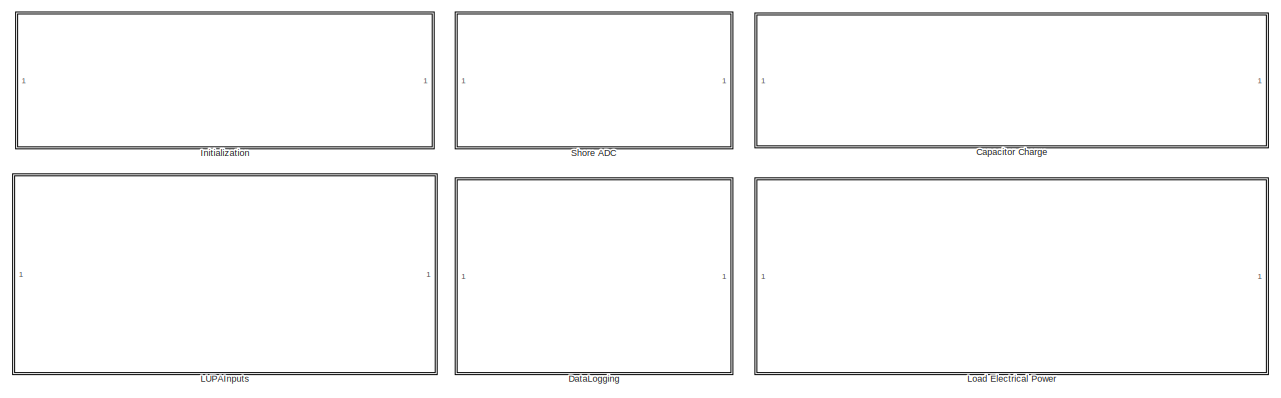
[diagram: root canvas - part 1/2, full width, top band]
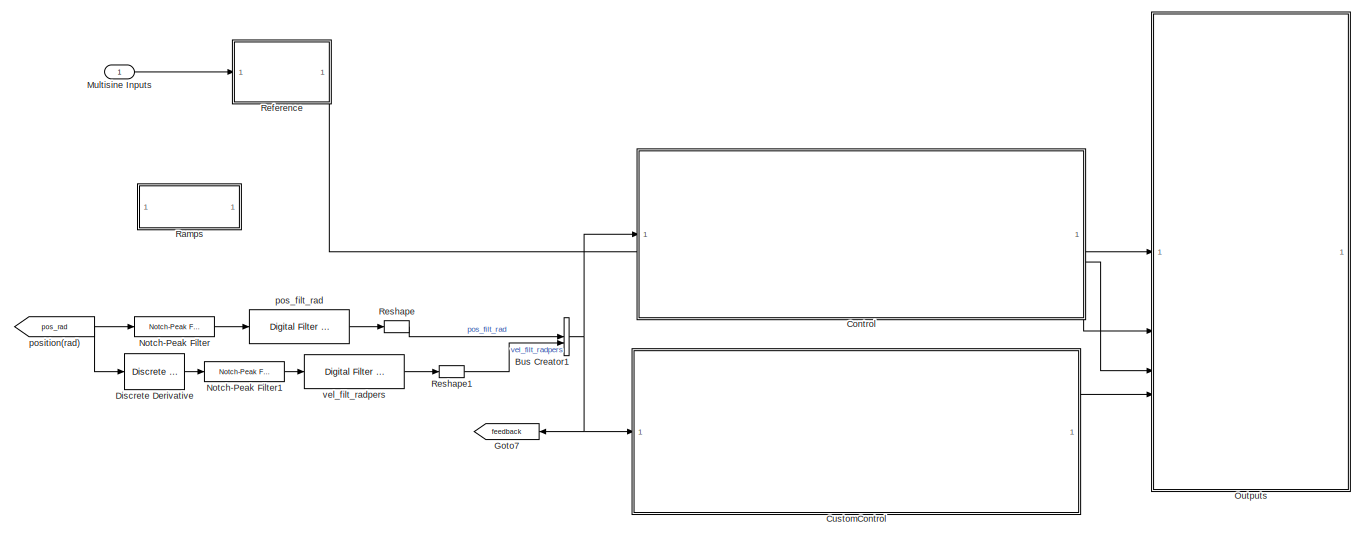
[diagram: root canvas - part 2/2, full width, bottom band]
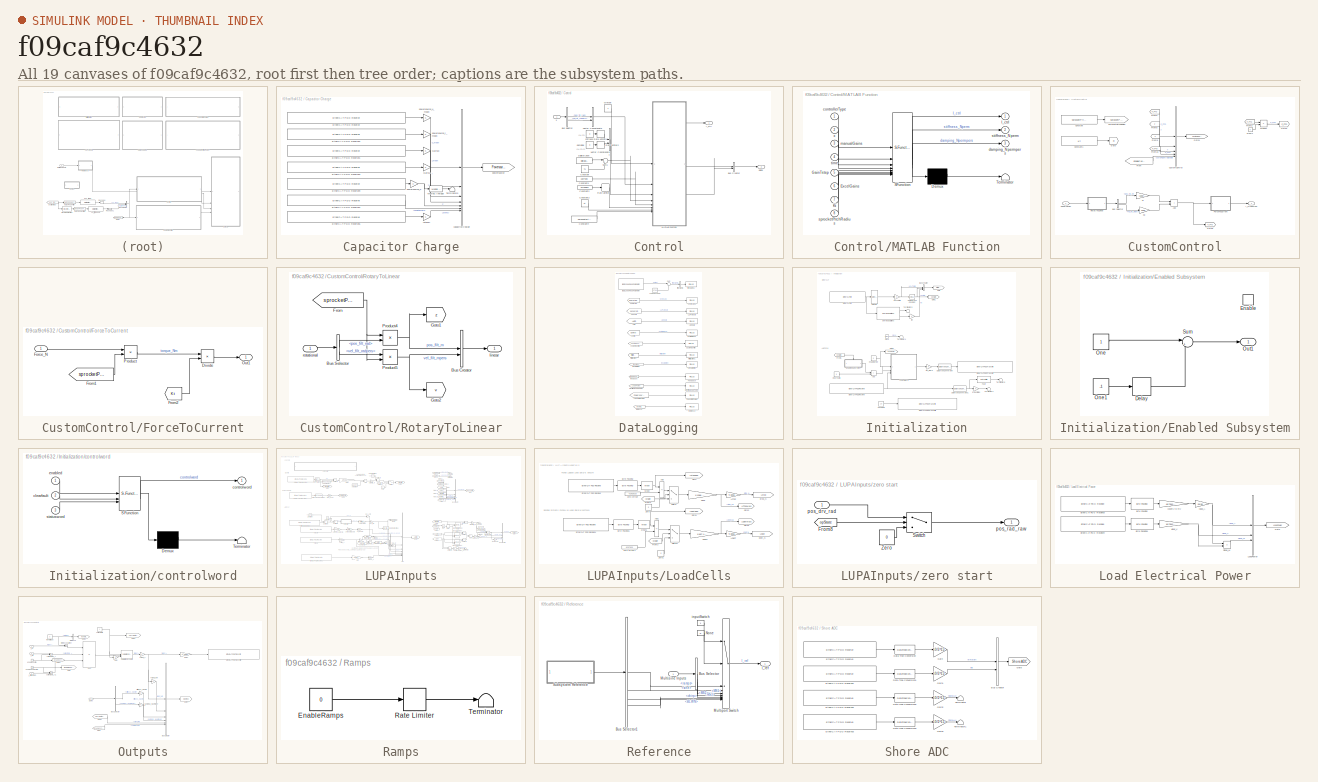
[diagram: thumbnail index - all 19 canvases of the model, root first then tree order]
MODEL slx_f09caf9c4632
KIND model
CONFIG AbsTol = auto
CONFIG EnableMultiTasking = off
CONFIG FixedStep = Ts
CONFIG MaxStep = auto
CONFIG MinStep = auto
CONFIG PreLoadFcn = addpath(genpath('utils'))\n\n
CONFIG RelTol = 1e-3
CONFIG SampleTimeConstraint = Unconstrained
CONFIG SolverName = FixedStepAuto
CONFIG StartTime = 0.0
CONFIG StopTime = inf
WORKSPACE source: mxarray member
WORKSPACE Sig: Simulink.Signal (value not decoded)
BLOCK [BusCreator] Bus Creator1
  DisplayOption = bar
  InheritFromInputs = on
  Inputs = pos_filt_rad,vel_filt_radpers
BLOCK [SubSystem] Capacitor Charge
BLOCK [Reference] Capacitor Charge/EtherCAT PDO Receive  REF=slrealtimeethercatlib/EtherCAT PDO Receive
  Priority = 2
  SourceBlock = slrealtimeethercatlib/EtherCAT PDO Receive
  SourceType = ethercat_pdo_receive
BLOCK [Reference] Capacitor Charge/EtherCAT PDO Receive1  REF=slrealtimeethercatlib/EtherCAT PDO Receive
  Priority = 2
  SourceBlock = slrealtimeethercatlib/EtherCAT PDO Receive
  SourceType = ethercat_pdo_receive
BLOCK [Reference] Capacitor Charge/EtherCAT PDO Receive2  REF=slrealtimeethercatlib/EtherCAT PDO Receive
  Priority = 2
  SourceBlock = slrealtimeethercatlib/EtherCAT PDO Receive
  SourceType = ethercat_pdo_receive
BLOCK [Reference] Capacitor Charge/EtherCAT PDO Receive3  REF=slrealtimeethercatlib/EtherCAT PDO Receive
  Priority = 2
  SourceBlock = slrealtimeethercatlib/EtherCAT PDO Receive
  SourceType = ethercat_pdo_receive
BLOCK [Reference] Capacitor Charge/EtherCAT PDO Receive4  REF=slrealtimeethercatlib/EtherCAT PDO Receive
  Priority = 2
  SourceBlock = slrealtimeethercatlib/EtherCAT PDO Receive
  SourceType = ethercat_pdo_receive
BLOCK [Reference] Capacitor Charge/EtherCAT PDO Receive5  REF=slrealtimeethercatlib/EtherCAT PDO Receive
  Priority = 2
  SourceBlock = slrealtimeethercatlib/EtherCAT PDO Receive
  SourceType = ethercat_pdo_receive
BLOCK [Reference] Capacitor Charge/EtherCAT PDO Receive9  REF=slrealtimeethercatlib/EtherCAT PDO Receive
  Priority = 2
  SourceBlock = slrealtimeethercatlib/EtherCAT PDO Receive
  SourceType = ethercat_pdo_receive
BLOCK [Gain] Capacitor Charge/Gain10
  OutDataTypeStr = double
BLOCK [Gain] Capacitor Charge/Gain11
  OutDataTypeStr = double
BLOCK [Gain] Capacitor Charge/Latency
  OutDataTypeStr = double
BLOCK [Reference] Capacitor Charge/Moving Average  REF=dspstat3/Moving
Average
  SourceBlock = dspstat3/Moving\nAverage
  SourceType = dsp.simulink.MovingAverage
BLOCK [Terminator] Capacitor Charge/Terminator5
BLOCK [BusCreator] Capacitor Charge/capacitorCharge
  DisplayOption = bar
  InheritFromInputs = on
  Inputs = 7
BLOCK [Goto] Capacitor Charge/powersource
  GotoTag = Powersource
  TagVisibility = global
BLOCK [Gain] Capacitor Charge/powersource_P
  OutDataTypeStr = double
BLOCK [Gain] Capacitor Charge/powersource_i_mean
  OutDataTypeStr = double
BLOCK [Gain] Capacitor Charge/powersource_u_mean
  OutDataTypeStr = double
BLOCK [SubSystem] Control
BLOCK [BusCreator] Control/Bus Creator
  DisplayOption = bar
  InheritFromInputs = on
  Inputs = 2
BLOCK [BusSelector] Control/Bus Selector
  OutputSignals = pos_filt_rad,vel_filt_radpers
BLOCK [Constant] Control/Constant
  Value = Ts
BLOCK [Constant] Control/Constant1
  Value = gainTstep
BLOCK [Constant] Control/Constant2
  Value = ExcelGains
  VectorParams1D = off
BLOCK [Constant] Control/Constant3
  Value = Kt
BLOCK [Constant] Control/Constant4
  Value = sprocketPitchRadius
BLOCK [DigitalClock] Control/Digital Clock
  SampleTime = Ts
BLOCK [Outport] Control/I_ctrl
BLOCK [SubSystem] Control/MATLAB Function
  ErrorFcn = Stateflow.Translate.translate
  PermitHierarchicalResolution = ExplicitOnly
  SFBlockType = MATLAB Function
  TreatAsAtomicUnit = on
BLOCK [Demux] Control/MATLAB Function/ Demux 
  Outputs = 1
BLOCK [S-Function] Control/MATLAB Function/ SFunction 
  EnableBusSupport = off
  FunctionName = sf_sfun
  PortCounts = [8 4]
  SFcnIsStateOwnerBlock = off
  SFunctionDeploymentMode = off
  Tag = Stateflow S-Function 1
BLOCK [Terminator] Control/MATLAB Function/ Terminator 
BLOCK [Inport] Control/MATLAB Function/ExcelGains
  Port = 6
BLOCK [Inport] Control/MATLAB Function/GainTstep
  Port = 5
BLOCK [Outport] Control/MATLAB Function/I_ctrl
BLOCK [Inport] Control/MATLAB Function/Kt
  Port = 7
BLOCK [Inport] Control/MATLAB Function/controllerType
BLOCK [Outport] Control/MATLAB Function/damping_Npermpers
  Port = 3
BLOCK [Inport] Control/MATLAB Function/manualGains
  Port = 3
BLOCK [Inport] Control/MATLAB Function/sprocketPitchRadius
  Port = 8
BLOCK [Outport] Control/MATLAB Function/stiffness_Nperm
  Port = 2
BLOCK [Inport] Control/MATLAB Function/time
  Port = 4
BLOCK [Inport] Control/MATLAB Function/x
  Port = 2
BLOCK [RateLimiter] Control/Rate Limiter
  FallingSlewLimit = -200
  RisingSlewLimit = 200
  SampleTimeMode = inherited
BLOCK [RateLimiter] Control/Rate Limiter1
  FallingSlewLimit = -200
  RisingSlewLimit = 200
  SampleTimeMode = inherited
BLOCK [RateLimiter] Control/Rate Limiter2
  FallingSlewLimit = -200
  RisingSlewLimit = 200
  SampleTimeMode = inherited
BLOCK [Sum] Control/Sum1
  Inputs = |++
BLOCK [Concatenate] Control/Vector Concatenate
  Mode = Multidimensional array
BLOCK [Concatenate] Control/Vector Concatenate1
  Mode = Multidimensional array
BLOCK [Constant] Control/ctrlType
BLOCK [Constant] Control/damping
  Value = 0
BLOCK [Outport] Control/gains
  Port = 2
BLOCK [Constant] Control/stiffness
  Value = 0
BLOCK [Inport] Control/x
BLOCK [SubSystem] CustomControl
BLOCK [Sum] CustomControl/Add
  IconShape = rectangular
BLOCK [BusSelector] CustomControl/Bus Selector
  OutputSignals = pos_filt_m,vel_filt_mpers
BLOCK [Constant] CustomControl/Constant
  Value = sprocketPitchRadius
BLOCK [Constant] CustomControl/Constant1
  Value = Kt
BLOCK [BusCreator] CustomControl/CustomControl
  DisplayOption = bar
  InheritFromInputs = on
  Inputs = 5
BLOCK [SubSystem] CustomControl/ForceToCurrent
  NameLocation = top
BLOCK [Product] CustomControl/ForceToCurrent/Divide
  Inputs = */
BLOCK [Inport] CustomControl/ForceToCurrent/Force_N
BLOCK [From] CustomControl/ForceToCurrent/From1
  GotoTag = sprocketPitchRadius
  TagVisibility = global
BLOCK [From] CustomControl/ForceToCurrent/From2
  GotoTag = Kt
  TagVisibility = global
BLOCK [Outport] CustomControl/ForceToCurrent/Out1
BLOCK [Product] CustomControl/ForceToCurrent/Product
BLOCK [From] CustomControl/From
  GotoTag = EnableCustControl
  TagVisibility = global
BLOCK [From] CustomControl/From10
  GotoTag = P_PTO
  TagVisibility = global
BLOCK [From] CustomControl/From3
  GotoTag = F_PTO
BLOCK [From] CustomControl/From4
  GotoTag = v
  TagVisibility = global
BLOCK [From] CustomControl/From5
  GotoTag = F_PTO
BLOCK [From] CustomControl/From8
  GotoTag = z
  TagVisibility = global
BLOCK [From] CustomControl/From9
  GotoTag = v
  TagVisibility = global
BLOCK [Goto] CustomControl/Goto
  GotoTag = Kt
  TagVisibility = global
BLOCK [Goto] CustomControl/Goto1
  GotoTag = CustomControl
  TagVisibility = global
BLOCK [Goto] CustomControl/Goto2
  GotoTag = P_PTO
  TagVisibility = global
BLOCK [Goto] CustomControl/Goto5
  GotoTag = F_PTO
BLOCK [Outport] CustomControl/I_ctrlCustom
BLOCK [Gain] CustomControl/Ki
  Gain = -1000
BLOCK [Gain] CustomControl/Kp
  Gain = 1000
BLOCK [Product] CustomControl/Product
BLOCK [SubSystem] CustomControl/RotaryToLinear
  NameLocation = top
BLOCK [BusCreator] CustomControl/RotaryToLinear/Bus Creator
  DisplayOption = bar
  InheritFromInputs = on
  Inputs = 2
BLOCK [BusSelector] CustomControl/RotaryToLinear/Bus Selector
  OutputSignals = pos_filt_rad,vel_filt_radpers
BLOCK [From] CustomControl/RotaryToLinear/From
  GotoTag = sprocketPitchRadius
  TagVisibility = global
BLOCK [Goto] CustomControl/RotaryToLinear/Goto1
  GotoTag = z
  TagVisibility = global
BLOCK [Goto] CustomControl/RotaryToLinear/Goto2
  GotoTag = v
  TagVisibility = global
BLOCK [Product] CustomControl/RotaryToLinear/Product4
BLOCK [Product] CustomControl/RotaryToLinear/Product5
BLOCK [Outport] CustomControl/RotaryToLinear/linear
  NameLocation = top
BLOCK [Inport] CustomControl/RotaryToLinear/rotational
BLOCK [Inport] CustomControl/observation
BLOCK [Goto] CustomControl/sprocketPitchRadius
  GotoTag = sprocketPitchRadius
  TagVisibility = global
BLOCK [SubSystem] DataLogging
BLOCK [From] DataLogging/AMC
  GotoTag = AMCin
  TagVisibility = global
BLOCK [Reference] DataLogging/AMCData  REF=slrealtimeloglib/File Log
  SourceBlock = slrealtimeloglib/File Log
  SourceType = slrealtimeloggingblock
BLOCK [Reference] DataLogging/CapacitorCharge  REF=slrealtimeloglib/File Log
  SourceBlock = slrealtimeloglib/File Log
  SourceType = slrealtimeloggingblock
BLOCK [Reference] DataLogging/ControlSignal  REF=slrealtimeloglib/File Log
  SourceBlock = slrealtimeloglib/File Log
  SourceType = slrealtimeloggingblock
BLOCK [Reference] DataLogging/CustomControl  REF=slrealtimeloglib/File Log
  SourceBlock = slrealtimeloglib/File Log
  SourceType = slrealtimeloggingblock
BLOCK [Reference] DataLogging/ElectricalLoadPower  REF=slrealtimeloglib/File Log
  SourceBlock = slrealtimeloglib/File Log
  SourceType = slrealtimeloggingblock
BLOCK [Reference] DataLogging/Feedback  REF=slrealtimeloglib/File Log
  SourceBlock = slrealtimeloglib/File Log
  SourceType = slrealtimeloggingblock
BLOCK [Reference] DataLogging/IEEE 1588 Read Parameter  REF=slrealtimeptplib/IEEE 1588
Read Parameter
  Priority = 1
  SourceBlock = slrealtimeptplib/IEEE 1588\nRead Parameter
  SourceType = IEEE_1588_read_param
BLOCK [Reference] DataLogging/LUPAInputs  REF=slrealtimeloglib/File Log
  SourceBlock = slrealtimeloglib/File Log
  SourceType = slrealtimeloggingblock
BLOCK [Constant] DataLogging/Leap Seconds
  OutDataTypeStr = double
  Value = 37e9
BLOCK [Reference] DataLogging/LinearMotion  REF=slrealtimeloglib/File Log
  SourceBlock = slrealtimeloglib/File Log
  SourceType = slrealtimeloggingblock
BLOCK [Reference] DataLogging/Reference  REF=slrealtimeloglib/File Log
  SourceBlock = slrealtimeloglib/File Log
  SourceType = slrealtimeloggingblock
BLOCK [Sum] DataLogging/Sum
  Inputs = |+-
BLOCK [From] DataLogging/capacitorCharge
  GotoTag = Powersource
  TagVisibility = global
BLOCK [From] DataLogging/control
  GotoTag = Control
  TagVisibility = global
BLOCK [From] DataLogging/customControl
  GotoTag = CustomControl
  TagVisibility = global
BLOCK [From] DataLogging/electricalLoadPower
  GotoTag = LoadPower
  TagVisibility = global
BLOCK [From] DataLogging/feedback
  GotoTag = feedback
  TagVisibility = global
BLOCK [From] DataLogging/initialization
  GotoTag = initialization
  TagVisibility = global
BLOCK [Reference] DataLogging/initialization1  REF=slrealtimeloglib/File Log
  SourceBlock = slrealtimeloglib/File Log
  SourceType = slrealtimeloggingblock
BLOCK [From] DataLogging/linearMotion
  GotoTag = linearMotion
  TagVisibility = global
BLOCK [From] DataLogging/reference
  GotoTag = refAmplitude
  TagVisibility = global
BLOCK [From] DataLogging/sensors
  GotoTag = sensorsin
  TagVisibility = global
BLOCK [From] DataLogging/shoreADC
  GotoTag = ShoreADC
  TagVisibility = global
BLOCK [Reference] DataLogging/shoreADC1  REF=slrealtimeloglib/File Log
  SourceBlock = slrealtimeloglib/File Log
  SourceType = slrealtimeloggingblock
BLOCK [BusCreator] DataLogging/timestamp
  DisplayOption = bar
  InheritFromInputs = on
  Inputs = timestamp
BLOCK [Reference] DataLogging/timestamp1  REF=slrealtimeloglib/File Log
  SourceBlock = slrealtimeloglib/File Log
  SourceType = slrealtimeloggingblock
BLOCK [Reference] Discrete Derivative  REF=simulink/Discrete/Discrete Derivative
  SourceBlock = simulink/Discrete/Discrete Derivative
  SourceType = Discrete Derivative
BLOCK [Goto] Goto7
  GotoTag = feedback
  NameLocation = top
  TagVisibility = global
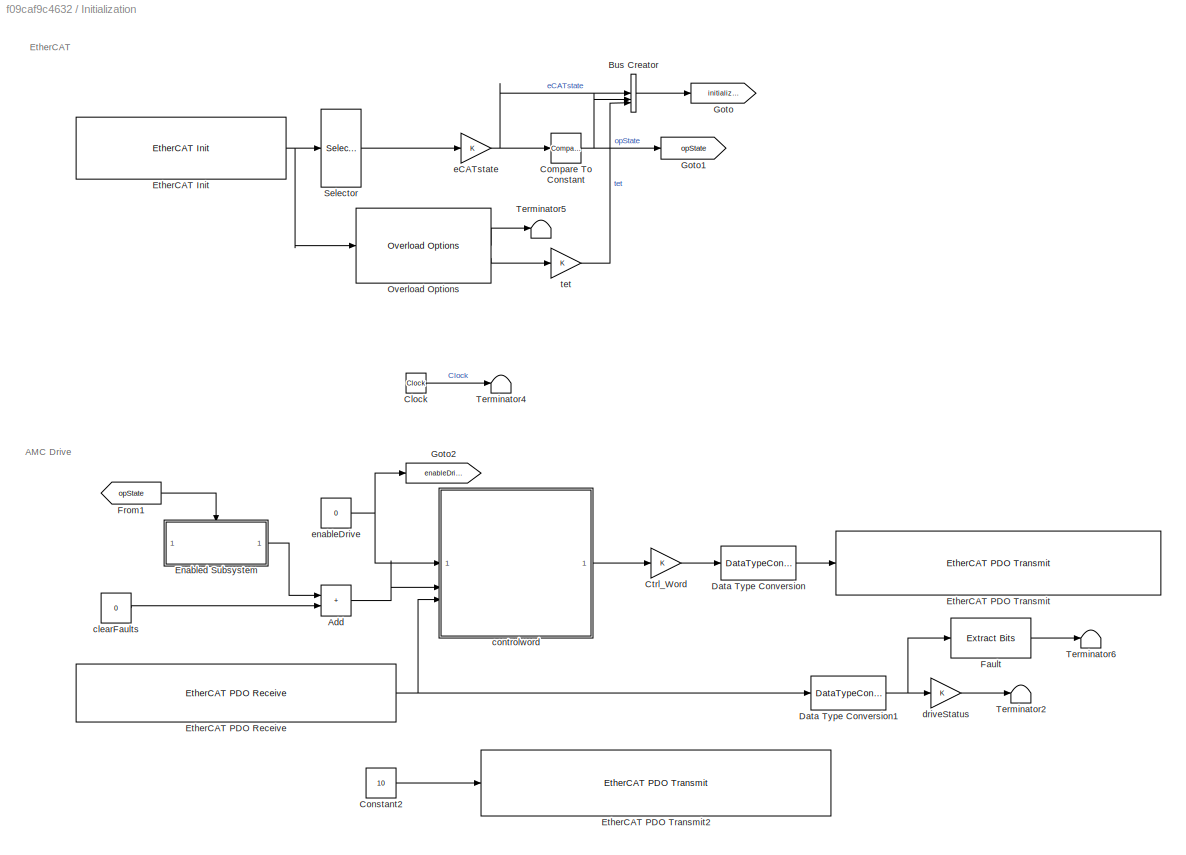
BLOCK [SubSystem] Initialization
BLOCK [Sum] Initialization/Add
  IconShape = rectangular
BLOCK [BusCreator] Initialization/Bus Creator
  DisplayOption = bar
  InheritFromInputs = on
  Inputs = eCATstate,opState,tet
BLOCK [Clock] Initialization/Clock
BLOCK [Reference] Initialization/Compare To Constant  REF=simulink/Logic and Bit
Operations/Compare
To Constant
  SourceBlock = simulink/Logic and Bit\nOperations/Compare\nTo Constant
  SourceType = Compare To Constant
BLOCK [Constant] Initialization/Constant2
  OutDataTypeStr = uint16
  Value = 10
BLOCK [Gain] Initialization/Ctrl_Word
BLOCK [DataTypeConversion] Initialization/Data Type Conversion
  OutDataTypeStr = uint16
  RndMeth = Floor
  SaturateOnIntegerOverflow = off
BLOCK [DataTypeConversion] Initialization/Data Type Conversion1
  OutDataTypeStr = double
  RndMeth = Floor
  SaturateOnIntegerOverflow = off
BLOCK [SubSystem] Initialization/Enabled Subsystem
  TreatAsAtomicUnit = on
BLOCK [Delay] Initialization/Enabled Subsystem/Delay
  DelayLength = 1/Ts
  InputPortMap = u0
BLOCK [EnablePort] Initialization/Enabled Subsystem/Enable
BLOCK [Constant] Initialization/Enabled Subsystem/One
  OutDataTypeStr = Inherit: Inherit via back propagation
BLOCK [Constant] Initialization/Enabled Subsystem/One1
  OutDataTypeStr = Inherit: Inherit via back propagation
  Value = -1
BLOCK [Outport] Initialization/Enabled Subsystem/Out1
BLOCK [Sum] Initialization/Enabled Subsystem/Sum
  Inputs = |++
BLOCK [Reference] Initialization/EtherCAT Init  REF=slrealtimeethercatlib/EtherCAT Init
  Priority = 0
  SourceBlock = slrealtimeethercatlib/EtherCAT Init
  SourceType = ethercatinit
BLOCK [Reference] Initialization/EtherCAT PDO Receive  REF=slrealtimeethercatlib/EtherCAT PDO Receive
  Priority = 2
  SourceBlock = slrealtimeethercatlib/EtherCAT PDO Receive
  SourceType = ethercat_pdo_receive
BLOCK [Reference] Initialization/EtherCAT PDO Transmit  REF=slrealtimeethercatlib/EtherCAT PDO Transmit
  Priority = 3
  SourceBlock = slrealtimeethercatlib/EtherCAT PDO Transmit
  SourceType = ethercat_pdo_send
BLOCK [Reference] Initialization/EtherCAT PDO Transmit2  REF=slrealtimeethercatlib/EtherCAT PDO Transmit
  Priority = 3
  SourceBlock = slrealtimeethercatlib/EtherCAT PDO Transmit
  SourceType = ethercat_pdo_send
BLOCK [Reference] Initialization/Fault  REF=simulink/Logic and Bit
Operations/Extract Bits
  SourceBlock = simulink/Logic and Bit\nOperations/Extract Bits
  SourceType = Extract Bits
BLOCK [From] Initialization/From1
  GotoTag = opState
  TagVisibility = global
BLOCK [Goto] Initialization/Goto
  GotoTag = initialization
  TagVisibility = global
BLOCK [Goto] Initialization/Goto1
  GotoTag = opState
  TagVisibility = global
BLOCK [Goto] Initialization/Goto2
  GotoTag = enableDrive
  TagVisibility = global
BLOCK [Reference] Initialization/Overload Options  REF=slrealtimetgmanagement/Overload Options
  SourceBlock = slrealtimetgmanagement/Overload Options
  SourceType = slrtOverloadOptions
BLOCK [Selector] Initialization/Selector
  IndexOptions = Index vector (dialog)
  Indices = 2
  InputPortWidth = 6
  OutputSizes = 1
BLOCK [Terminator] Initialization/Terminator2
BLOCK [Terminator] Initialization/Terminator4
BLOCK [Terminator] Initialization/Terminator5
BLOCK [Terminator] Initialization/Terminator6
BLOCK [Constant] Initialization/clearFaults
  Value = 0
BLOCK [SubSystem] Initialization/controlword
  ErrorFcn = Stateflow.Translate.translate
  PermitHierarchicalResolution = ExplicitOnly
  SFBlockType = MATLAB Function
  TreatAsAtomicUnit = on
BLOCK [Demux] Initialization/controlword/ Demux 
  Outputs = 1
BLOCK [S-Function] Initialization/controlword/ SFunction 
  EnableBusSupport = off
  FunctionName = sf_sfun
  PortCounts = [3 2]
  SFcnIsStateOwnerBlock = off
  SFunctionDeploymentMode = off
  Tag = Stateflow S-Function 2
BLOCK [Terminator] Initialization/controlword/ Terminator 
BLOCK [Inport] Initialization/controlword/clearfault
  Port = 2
BLOCK [Outport] Initialization/controlword/controlword
BLOCK [Inport] Initialization/controlword/enabled
BLOCK [Inport] Initialization/controlword/statusword
  Port = 3
BLOCK [Gain] Initialization/driveStatus
BLOCK [Gain] Initialization/eCATstate
  OutDataTypeStr = double
BLOCK [Constant] Initialization/enableDrive
  Value = 0
BLOCK [Gain] Initialization/tet
  OutDataTypeStr = double
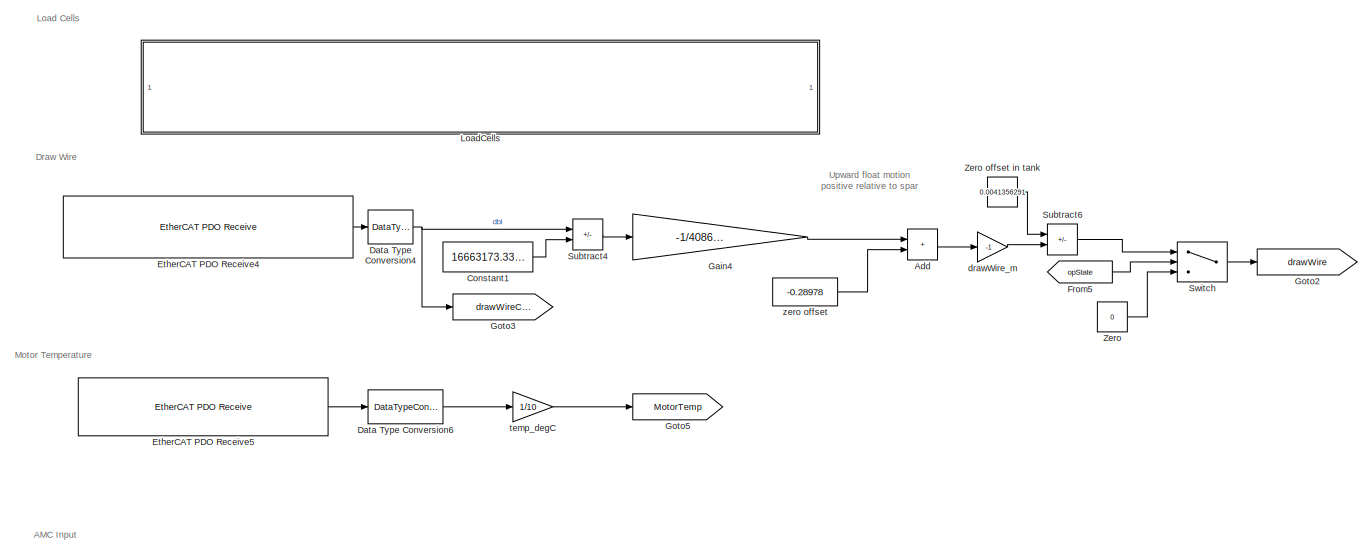
[diagram: LUPAInputs - part 1/3, top left region]
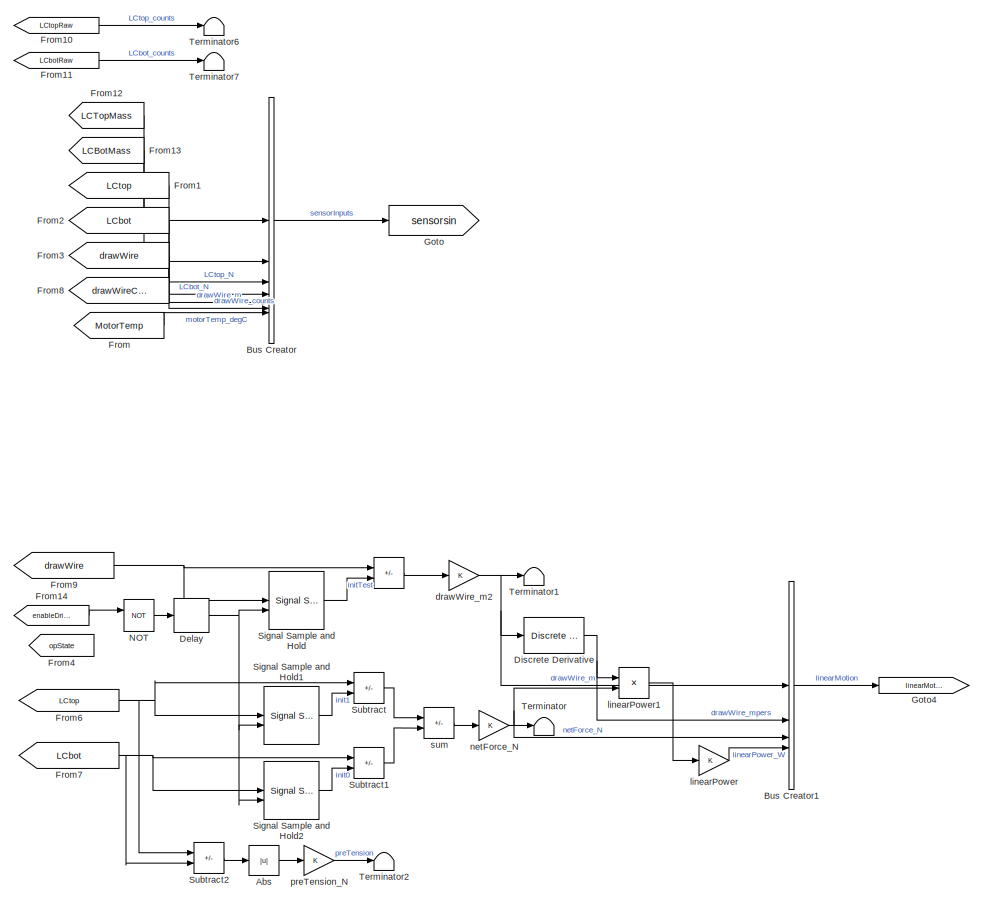
[diagram: LUPAInputs - part 2/3, right side, full height]
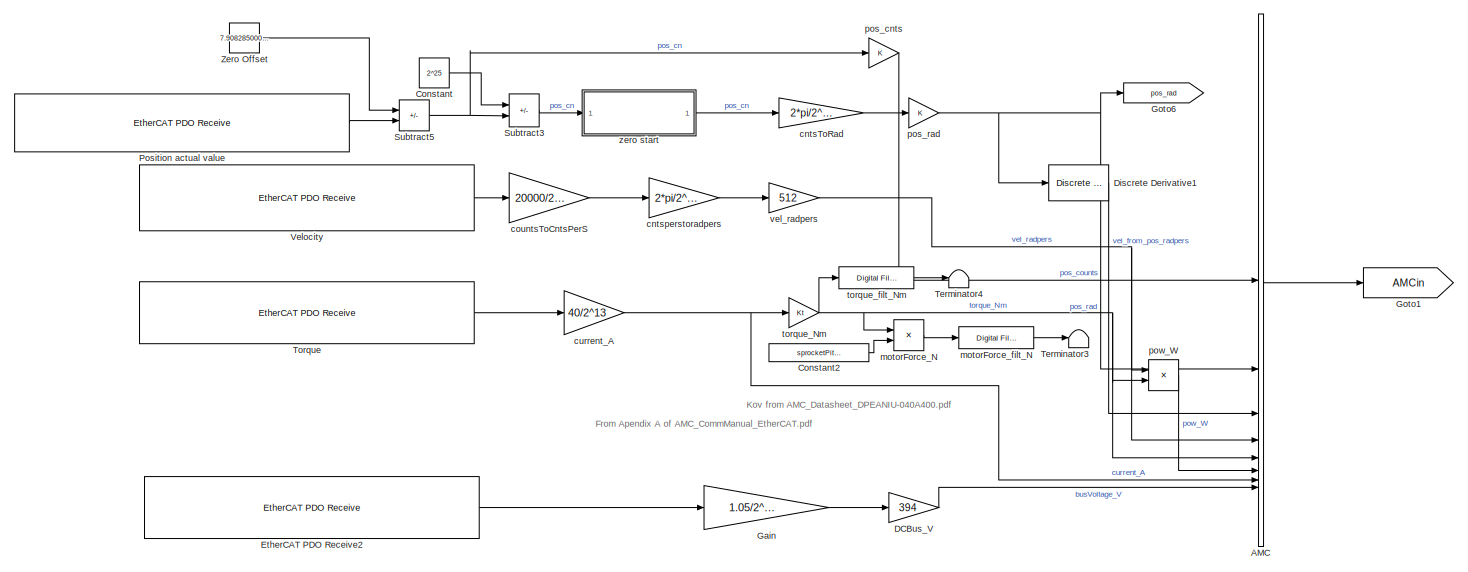
[diagram: LUPAInputs - part 3/3, bottom left region]
BLOCK [SubSystem] LUPAInputs
BLOCK [Sum] LUPAInputs/ 
  IconShape = rectangular
  Inputs = +-
BLOCK [BusCreator] LUPAInputs/AMC
  DisplayOption = bar
  InheritFromInputs = on
  Inputs = 8
BLOCK [Abs] LUPAInputs/Abs
  SaturateOnIntegerOverflow = off
BLOCK [Sum] LUPAInputs/Add
  IconShape = rectangular
BLOCK [BusCreator] LUPAInputs/Bus Creator
  DisplayOption = bar
  InheritFromInputs = on
  Inputs = 7
BLOCK [BusCreator] LUPAInputs/Bus Creator1
  DisplayOption = bar
  InheritFromInputs = on
  Inputs = drawWire_m,drawWire_mpers,netForce_N,linearPower_W
BLOCK [Constant] LUPAInputs/Constant
  Value = 2^25
BLOCK [Constant] LUPAInputs/Constant1
  Value = 16663173.3333
BLOCK [Constant] LUPAInputs/Constant2
  Value = sprocketPitchRadius
BLOCK [Gain] LUPAInputs/DCBus_V
  Gain = 394
BLOCK [DataTypeConversion] LUPAInputs/Data Type Conversion4
  OutDataTypeStr = double
  RndMeth = Floor
  SaturateOnIntegerOverflow = off
BLOCK [DataTypeConversion] LUPAInputs/Data Type Conversion6
  OutDataTypeStr = double
  RndMeth = Floor
  SaturateOnIntegerOverflow = off
BLOCK [Delay] LUPAInputs/Delay
  DelayLength = 1000
  InputPortMap = u0
BLOCK [Reference] LUPAInputs/Discrete Derivative  REF=simulink/Discrete/Discrete Derivative
  SourceBlock = simulink/Discrete/Discrete Derivative
  SourceType = Discrete Derivative
BLOCK [Reference] LUPAInputs/Discrete Derivative1  REF=simulink/Discrete/Discrete Derivative
  SourceBlock = simulink/Discrete/Discrete Derivative
  SourceType = Discrete Derivative
BLOCK [Reference] LUPAInputs/EtherCAT PDO Receive2  REF=slrealtimeethercatlib/EtherCAT PDO Receive
  Priority = 2
  SourceBlock = slrealtimeethercatlib/EtherCAT PDO Receive
  SourceType = ethercat_pdo_receive
BLOCK [Reference] LUPAInputs/EtherCAT PDO Receive4  REF=slrealtimeethercatlib/EtherCAT PDO Receive
  Priority = 2
  SourceBlock = slrealtimeethercatlib/EtherCAT PDO Receive
  SourceType = ethercat_pdo_receive
BLOCK [Reference] LUPAInputs/EtherCAT PDO Receive5  REF=slrealtimeethercatlib/EtherCAT PDO Receive
  Priority = 2
  SourceBlock = slrealtimeethercatlib/EtherCAT PDO Receive
  SourceType = ethercat_pdo_receive
BLOCK [From] LUPAInputs/From
  GotoTag = MotorTemp
  TagVisibility = global
BLOCK [From] LUPAInputs/From1
  GotoTag = LCtop
  TagVisibility = global
BLOCK [From] LUPAInputs/From10
  GotoTag = LCtopRaw
  TagVisibility = global
BLOCK [From] LUPAInputs/From11
  GotoTag = LCbotRaw
  TagVisibility = global
BLOCK [From] LUPAInputs/From12
  GotoTag = LCTopMass
  TagVisibility = global
BLOCK [From] LUPAInputs/From13
  GotoTag = LCBotMass
  TagVisibility = global
BLOCK [From] LUPAInputs/From14
  GotoTag = enableDrive
  TagVisibility = global
BLOCK [From] LUPAInputs/From2
  GotoTag = LCbot
  TagVisibility = global
BLOCK [From] LUPAInputs/From3
  GotoTag = drawWire
BLOCK [From] LUPAInputs/From4
  Commented = on
  GotoTag = opState
  TagVisibility = global
BLOCK [From] LUPAInputs/From5
  GotoTag = opState
  TagVisibility = global
BLOCK [From] LUPAInputs/From6
  GotoTag = LCtop
  TagVisibility = global
BLOCK [From] LUPAInputs/From7
  GotoTag = LCbot
  TagVisibility = global
BLOCK [From] LUPAInputs/From8
  GotoTag = drawWireCounts
BLOCK [From] LUPAInputs/From9
  GotoTag = drawWire
BLOCK [Gain] LUPAInputs/Gain
  Gain = 1.05/2^14
  OutDataTypeStr = double
BLOCK [Gain] LUPAInputs/Gain4
  Gain = -1/40866.6667
BLOCK [Goto] LUPAInputs/Goto
  GotoTag = sensorsin
  TagVisibility = global
BLOCK [Goto] LUPAInputs/Goto1
  GotoTag = AMCin
  TagVisibility = global
BLOCK [Goto] LUPAInputs/Goto2
  GotoTag = drawWire
BLOCK [Goto] LUPAInputs/Goto3
  GotoTag = drawWireCounts
BLOCK [Goto] LUPAInputs/Goto4
  GotoTag = linearMotion
  TagVisibility = global
BLOCK [Goto] LUPAInputs/Goto5
  GotoTag = MotorTemp
  TagVisibility = global
BLOCK [Goto] LUPAInputs/Goto6
  GotoTag = pos_rad
  TagVisibility = global
BLOCK [SubSystem] LUPAInputs/LoadCells
BLOCK [Sum] LUPAInputs/LoadCells/Add
  IconShape = rectangular
  Inputs = +-
BLOCK [Sum] LUPAInputs/LoadCells/Add1
  IconShape = rectangular
  Inputs = +-
BLOCK [Reference] LUPAInputs/LoadCells/Byte Packing  REF=slrealtimeutilitieslib/Byte Packing
  SourceBlock = slrealtimeutilitieslib/Byte Packing
  SourceType = slrealtimebytepacking
BLOCK [Reference] LUPAInputs/LoadCells/Byte Packing1  REF=slrealtimeutilitieslib/Byte Packing
  SourceBlock = slrealtimeutilitieslib/Byte Packing
  SourceType = slrealtimebytepacking
BLOCK [Reference] LUPAInputs/LoadCells/EtherCAT PDO Receive  REF=slrealtimeethercatlib/EtherCAT PDO Receive
  Priority = 2
  SourceBlock = slrealtimeethercatlib/EtherCAT PDO Receive
  SourceType = ethercat_pdo_receive
BLOCK [Reference] LUPAInputs/LoadCells/EtherCAT PDO Receive1  REF=slrealtimeethercatlib/EtherCAT PDO Receive
  Priority = 2
  SourceBlock = slrealtimeethercatlib/EtherCAT PDO Receive
  SourceType = ethercat_pdo_receive
BLOCK [From] LUPAInputs/LoadCells/From2
  GotoTag = opState
  TagVisibility = global
BLOCK [From] LUPAInputs/LoadCells/From3
  GotoTag = opState
  TagVisibility = global
BLOCK [Goto] LUPAInputs/LoadCells/Goto
  GotoTag = LCtopRaw
  TagVisibility = global
BLOCK [Goto] LUPAInputs/LoadCells/Goto1
  GotoTag = LCbotRaw
  TagVisibility = global
BLOCK [Goto] LUPAInputs/LoadCells/Goto2
  GotoTag = LCTopMass
  TagVisibility = global
BLOCK [Goto] LUPAInputs/LoadCells/Goto3
  GotoTag = LCBotMass
  TagVisibility = global
BLOCK [Gain] LUPAInputs/LoadCells/LCBOT
  Gain = 9.8056
BLOCK [Gain] LUPAInputs/LoadCells/LCTOP
  Gain = 9.8056
BLOCK [Reference] LUPAInputs/LoadCells/Mean  REF=dspstat3/Mean
  SourceBlock = dspstat3/Mean
  SourceType = Mean
  UserDataPersistent = on
BLOCK [Reference] LUPAInputs/LoadCells/Mean1  REF=dspstat3/Mean
  SourceBlock = dspstat3/Mean
  SourceType = Mean
  UserDataPersistent = on
BLOCK [Switch] LUPAInputs/LoadCells/Switch
  Criteria = u2 > Threshold
  InputSameDT = off
  SaturateOnIntegerOverflow = off
BLOCK [Switch] LUPAInputs/LoadCells/Switch1
  Criteria = u2 > Threshold
  InputSameDT = off
  SaturateOnIntegerOverflow = off
BLOCK [Constant] LUPAInputs/LoadCells/Zero
  OutDataTypeStr = Inherit: Inherit via back propagation
  Value = 0
BLOCK [Constant] LUPAInputs/LoadCells/Zero1
  OutDataTypeStr = Inherit: Inherit via back propagation
  Value = 0
BLOCK [Goto] LUPAInputs/LoadCells/lcbot_N
  GotoTag = LCbot
  TagVisibility = global
BLOCK [Goto] LUPAInputs/LoadCells/lctop_N
  GotoTag = LCtop
  TagVisibility = global
BLOCK [Gain] LUPAInputs/LoadCells/slope
  Gain = 1/1088.2909
BLOCK [Gain] LUPAInputs/LoadCells/slope1
  Gain = 1/857.4045
BLOCK [Constant] LUPAInputs/LoadCells/zero offset
  Value = 4295.9625
BLOCK [Constant] LUPAInputs/LoadCells/zero offset1
  Value = -6297.936
BLOCK [Logic] LUPAInputs/NOT
  AllPortsSameDT = off
  IconShape = distinctive
  Operator = NOT
  OutDataTypeStr = boolean
BLOCK [Reference] LUPAInputs/Position actual value  REF=slrealtimeethercatlib/EtherCAT PDO Receive
  Priority = 2
  SourceBlock = slrealtimeethercatlib/EtherCAT PDO Receive
  SourceType = ethercat_pdo_receive
BLOCK [Reference] LUPAInputs/Signal Sample and Hold  REF=eeGeneralControl/Signal Sample and Hold
  LibrarySourceBlock = ee_sl_lib/General Control/Signal Sample and Hold
  SourceBlock = eeGeneralControl/Signal Sample and Hold
  SourceType = Signal Sample-and-Hold
BLOCK [Reference] LUPAInputs/Signal Sample and Hold1  REF=eeGeneralControl/Signal Sample and Hold
  LibrarySourceBlock = ee_sl_lib/General Control/Signal Sample and Hold
  SourceBlock = eeGeneralControl/Signal Sample and Hold
  SourceType = Signal Sample-and-Hold
BLOCK [Reference] LUPAInputs/Signal Sample and Hold2  REF=eeGeneralControl/Signal Sample and Hold
  LibrarySourceBlock = ee_sl_lib/General Control/Signal Sample and Hold
  SourceBlock = eeGeneralControl/Signal Sample and Hold
  SourceType = Signal Sample-and-Hold
BLOCK [Sum] LUPAInputs/Subtract
  IconShape = rectangular
  Inputs = +-
BLOCK [Sum] LUPAInputs/Subtract1
  IconShape = rectangular
  Inputs = +-
BLOCK [Sum] LUPAInputs/Subtract2
  IconShape = rectangular
  Inputs = +-
BLOCK [Sum] LUPAInputs/Subtract3
  IconShape = rectangular
  Inputs = -+
BLOCK [Sum] LUPAInputs/Subtract4
  IconShape = rectangular
  Inputs = +-
BLOCK [Sum] LUPAInputs/Subtract5
  IconShape = rectangular
  Inputs = -+
  OutDataTypeStr = double
BLOCK [Sum] LUPAInputs/Subtract6
  IconShape = rectangular
  Inputs = -+
BLOCK [Switch] LUPAInputs/Switch
  Criteria = u2 > Threshold
  InputSameDT = off
  SaturateOnIntegerOverflow = off
BLOCK [Terminator] LUPAInputs/Terminator
BLOCK [Terminator] LUPAInputs/Terminator1
BLOCK [Terminator] LUPAInputs/Terminator2
BLOCK [Terminator] LUPAInputs/Terminator3
BLOCK [Terminator] LUPAInputs/Terminator4
BLOCK [Terminator] LUPAInputs/Terminator6
BLOCK [Terminator] LUPAInputs/Terminator7
BLOCK [Reference] LUPAInputs/Torque  REF=slrealtimeethercatlib/EtherCAT PDO Receive
  Priority = 2
  SourceBlock = slrealtimeethercatlib/EtherCAT PDO Receive
  SourceType = ethercat_pdo_receive
BLOCK [Reference] LUPAInputs/Velocity  REF=slrealtimeethercatlib/EtherCAT PDO Receive
  Priority = 2
  SourceBlock = slrealtimeethercatlib/EtherCAT PDO Receive
  SourceType = ethercat_pdo_receive
BLOCK [Constant] LUPAInputs/Zero
  OutDataTypeStr = double
  Value = 0
BLOCK [Constant] LUPAInputs/Zero Offset
  Value = 7.908285000000000e+05
BLOCK [Constant] LUPAInputs/Zero offset in tank
  Value = 0.0041356291
BLOCK [Gain] LUPAInputs/cntsToRad
  Gain = 2*pi/2^26
  OutDataTypeStr = double
BLOCK [Gain] LUPAInputs/cntsperstoradpers
  Gain = 2*pi/2^26
BLOCK [Gain] LUPAInputs/countsToCntsPerS
  Gain = 20000/2^17
  OutDataTypeStr = double
BLOCK [Gain] LUPAInputs/current_A
  Gain = 40/2^13
  OutDataTypeStr = double
BLOCK [Gain] LUPAInputs/drawWire_m
  Gain = -1
BLOCK [Gain] LUPAInputs/drawWire_m2
BLOCK [Gain] LUPAInputs/linearPower
BLOCK [Product] LUPAInputs/linearPower1
BLOCK [Product] LUPAInputs/motorForce_N
  Inputs = */
BLOCK [Reference] LUPAInputs/motorForce_filt_N  REF=dspfdesign/Digital
Filter Design
  SourceBlock = dspfdesign/Digital\nFilter Design
  SourceType = Digital Filter Design
  UserDataPersistent = on
BLOCK [Gain] LUPAInputs/netForce_N
BLOCK [Gain] LUPAInputs/pos_cnts
BLOCK [Gain] LUPAInputs/pos_rad
BLOCK [Product] LUPAInputs/pow_W
BLOCK [Gain] LUPAInputs/preTension_N
BLOCK [Sum] LUPAInputs/sum
  IconShape = rectangular
  Inputs = +-
BLOCK [Gain] LUPAInputs/temp_degC
  Gain = 1/10
BLOCK [Gain] LUPAInputs/torque_Nm
  Gain = Kt
BLOCK [Reference] LUPAInputs/torque_filt_Nm  REF=dspfdesign/Digital
Filter Design
  SourceBlock = dspfdesign/Digital\nFilter Design
  SourceType = Digital Filter Design
  UserDataPersistent = on
BLOCK [Gain] LUPAInputs/vel_radpers
  Gain = 512
BLOCK [Constant] LUPAInputs/zero offset
  Value = -0.28978
BLOCK [SubSystem] LUPAInputs/zero start
BLOCK [From] LUPAInputs/zero start/From8
  GotoTag = opState
  TagVisibility = global
BLOCK [Switch] LUPAInputs/zero start/Switch
  Criteria = u2 > Threshold
  InputSameDT = off
  SaturateOnIntegerOverflow = off
BLOCK [Constant] LUPAInputs/zero start/Zero
  OutDataTypeStr = double
  Value = 0
BLOCK [Inport] LUPAInputs/zero start/pos_drv_rad
BLOCK [Outport] LUPAInputs/zero start/pos_rad_raw
BLOCK [SubSystem] Load Electrical Power
BLOCK [Reference] Load Electrical Power/Byte Packing  REF=slrealtimeutilitieslib/Byte Packing
  SourceBlock = slrealtimeutilitieslib/Byte Packing
  SourceType = slrealtimebytepacking
BLOCK [Reference] Load Electrical Power/Byte Packing1  REF=slrealtimeutilitieslib/Byte Packing
  SourceBlock = slrealtimeutilitieslib/Byte Packing
  SourceType = slrealtimebytepacking
BLOCK [Reference] Load Electrical Power/EtherCAT PDO Receive3  REF=slrealtimeethercatlib/EtherCAT PDO Receive
  Priority = 2
  SourceBlock = slrealtimeethercatlib/EtherCAT PDO Receive
  SourceType = ethercat_pdo_receive
BLOCK [Reference] Load Electrical Power/EtherCAT PDO Receive4  REF=slrealtimeethercatlib/EtherCAT PDO Receive
  Priority = 2
  SourceBlock = slrealtimeethercatlib/EtherCAT PDO Receive
  SourceType = ethercat_pdo_receive
BLOCK [Goto] Load Electrical Power/Goto
  GotoTag = LoadPower
  TagVisibility = global
BLOCK [Gain] Load Electrical Power/Iload_A
  Gain = 20/50
BLOCK [BusCreator] Load Electrical Power/LoadPower
  DisplayOption = bar
  InheritFromInputs = on
  Inputs = 3
BLOCK [Product] Load Electrical Power/Pload_W
BLOCK [Gain] Load Electrical Power/Vload_V
  Gain = 10/7812500
  OutDataTypeStr = double
BLOCK [Gain] Load Electrical Power/counts to mV
  Gain = 40/7812500
  OutDataTypeStr = double
BLOCK [Inport] Multisine Inputs
  OutDataTypeStr = Bus: refSigs
BLOCK [Reference] Notch-Peak Filter  REF=dspfdesign/Notch-Peak Filter
  SourceBlock = dspfdesign/Notch-Peak Filter
  SourceType = dsp.simulink.NotchPeakFilter
BLOCK [Reference] Notch-Peak Filter1  REF=dspfdesign/Notch-Peak Filter
  SourceBlock = dspfdesign/Notch-Peak Filter
  SourceType = dsp.simulink.NotchPeakFilter
BLOCK [SubSystem] Outputs
BLOCK [BusCreator] Outputs/Bus Creator
  DisplayOption = bar
  InheritFromInputs = on
  Inputs = 6
BLOCK [BusSelector] Outputs/Bus Selector
  OutputSignals = stiffness_Nperm,damping_Npermpers
BLOCK [Reference] Outputs/EtherCAT PDO Transmit1  REF=slrealtimeethercatlib/EtherCAT PDO Transmit
  Priority = 3
  SourceBlock = slrealtimeethercatlib/EtherCAT PDO Transmit
  SourceType = ethercat_pdo_send
BLOCK [From] Outputs/From
  GotoTag = EnableControl
BLOCK [From] Outputs/From1
  GotoTag = currentLimit
BLOCK [Gain] Outputs/Gain
  Gain = -1
BLOCK [Gain] Outputs/Gain1
  Gain = 2^15/40
  OutDataTypeStr = int16
BLOCK [Goto] Outputs/Goto
  GotoTag = EnableCustControl
  TagVisibility = global
BLOCK [Goto] Outputs/Goto1
  GotoTag = currentLimit
BLOCK [Goto] Outputs/Goto2
  GotoTag = refAmplitude
  TagVisibility = global
BLOCK [Goto] Outputs/Goto3
  GotoTag = EnableControl
BLOCK [Goto] Outputs/Goto4
  GotoTag = Control
  TagVisibility = global
BLOCK [Inport] Outputs/I_ctrl
  Port = 2
BLOCK [Inport] Outputs/I_ctrlCustom
  Port = 4
BLOCK [Inport] Outputs/I_ref
BLOCK [Reference] Outputs/Saturation Dynamic  REF=simulink/Discontinuities/Saturation
Dynamic
  SourceBlock = simulink/Discontinuities/Saturation\nDynamic
  SourceType = Saturation Dynamic
BLOCK [Sum] Outputs/Sum
  IconShape = rectangular
  Inputs = +--
BLOCK [Gain] Outputs/Target_A
BLOCK [Gain] Outputs/Target_Nm
  Gain = Kt
BLOCK [Product] Outputs/currentCmd_A
BLOCK [Product] Outputs/currentCmd_A1
BLOCK [Constant] Outputs/currentLimit
BLOCK [Gain] Outputs/damping_Npermpers
BLOCK [Constant] Outputs/enableControl
  Value = 0
BLOCK [Constant] Outputs/enableCustControl
  Value = 0
BLOCK [Inport] Outputs/gains
  Port = 3
BLOCK [Constant] Outputs/refAmplitude
  Value = 0
BLOCK [BusCreator] Outputs/reference
  DisplayOption = bar
  InheritFromInputs = on
  Inputs = 1
BLOCK [Product] Outputs/referenceCurrent
BLOCK [Gain] Outputs/stiffness_Nperm
BLOCK [SubSystem] Ramps
BLOCK [Constant] Ramps/EnableRamps
  OutDataTypeStr = double
  Value = 0
BLOCK [RateLimiter] Ramps/Rate Limiter
  FallingSlewLimit = -1/rampTime
  RisingSlewLimit = 1/rampTime
  SampleTimeMode = inherited
BLOCK [Terminator] Ramps/Terminator
BLOCK [SubSystem] Reference
BLOCK [BusSelector] Reference/Bus Selector
  OutputSignals = MS1,MS2,MS3
BLOCK [BusSelector] Reference/Bus Selector1
  OutputSignals = ramps,sine,chirp,BLWN
BLOCK [Outport] Reference/I_ref
BLOCK [MultiPortSwitch] Reference/Multiport Switch
  InputSameDT = off
  Inputs = 8
  SaturateOnIntegerOverflow = off
BLOCK [Inport] Reference/Multisine Inputs
BLOCK [Constant] Reference/None
  Value = 0
BLOCK [SubSystem] Reference/Subsystem Reference
  ReferencedSubsystem = referenceSigs
BLOCK [Constant] Reference/inputSwitch
BLOCK [Reshape] Reshape
BLOCK [Reshape] Reshape1
BLOCK [SubSystem] Shore ADC
BLOCK [BusCreator] Shore ADC/Bus Creator
  DisplayOption = bar
  InheritFromInputs = on
  Inputs = 2
BLOCK [DataTypeConversion] Shore ADC/Data Type Conversion
  OutDataTypeStr = double
  RndMeth = Floor
  SaturateOnIntegerOverflow = off
BLOCK [DataTypeConversion] Shore ADC/Data Type Conversion1
  OutDataTypeStr = double
  RndMeth = Floor
  SaturateOnIntegerOverflow = off
BLOCK [DataTypeConversion] Shore ADC/Data Type Conversion2
  OutDataTypeStr = double
  RndMeth = Floor
  SaturateOnIntegerOverflow = off
BLOCK [DataTypeConversion] Shore ADC/Data Type Conversion3
  OutDataTypeStr = double
  RndMeth = Floor
  SaturateOnIntegerOverflow = off
BLOCK [Reference] Shore ADC/EtherCAT PDO Receive  REF=slrealtimeethercatlib/EtherCAT PDO Receive
  Priority = 2
  SourceBlock = slrealtimeethercatlib/EtherCAT PDO Receive
  SourceType = ethercat_pdo_receive
BLOCK [Reference] Shore ADC/EtherCAT PDO Receive1  REF=slrealtimeethercatlib/EtherCAT PDO Receive
  Priority = 2
  SourceBlock = slrealtimeethercatlib/EtherCAT PDO Receive
  SourceType = ethercat_pdo_receive
BLOCK [Reference] Shore ADC/EtherCAT PDO Receive2  REF=slrealtimeethercatlib/EtherCAT PDO Receive
  Priority = 2
  SourceBlock = slrealtimeethercatlib/EtherCAT PDO Receive
  SourceType = ethercat_pdo_receive
BLOCK [Reference] Shore ADC/EtherCAT PDO Receive3  REF=slrealtimeethercatlib/EtherCAT PDO Receive
  Priority = 2
  SourceBlock = slrealtimeethercatlib/EtherCAT PDO Receive
  SourceType = ethercat_pdo_receive
BLOCK [Gain] Shore ADC/Gain
  Gain = 10/2^15
BLOCK [Gain] Shore ADC/Gain1
  Gain = 10/2^15
BLOCK [Gain] Shore ADC/Gain2
  Gain = 10/2^15
BLOCK [Gain] Shore ADC/Gain3
  Gain = 10/2^15
BLOCK [Goto] Shore ADC/Goto
  GotoTag = ShoreADC
  TagVisibility = global
BLOCK [Terminator] Shore ADC/Terminator
BLOCK [Terminator] Shore ADC/Terminator1
BLOCK [Reference] pos_filt_rad  REF=dspfdesign/Digital
Filter Design
  SourceBlock = dspfdesign/Digital\nFilter Design
  SourceType = Digital Filter Design
  UserDataPersistent = on
BLOCK [From] position(rad)
  GotoTag = pos_rad
  TagVisibility = global
BLOCK [Reference] vel_filt_radpers  REF=dspfdesign/Digital
Filter Design
  SourceBlock = dspfdesign/Digital\nFilter Design
  SourceType = Digital Filter Design
  UserDataPersistent = on
ANNOTATION Control: (N/m)
ANNOTATION Control: (N/m/s)
ANNOTATION Initialization: AMC Drive
ANNOTATION Initialization: EtherCAT
ANNOTATION LUPAInputs: Upward float motion positive relative to spar
ANNOTATION LUPAInputs: AMC Input
ANNOTATION LUPAInputs: Draw Wire
ANNOTATION LUPAInputs: From Apendix A of AMC_CommManual_EtherCAT.pdf
ANNOTATION LUPAInputs: Kov from AMC_Datasheet_DPEANIU-040A400.pdf
ANNOTATION LUPAInputs: Load Cells
ANNOTATION LUPAInputs: Motor Temperature
ANNOTATION LUPAInputs/LoadCells: FUTEK LSB300 Load Cell S/N: 856279
ANNOTATION LUPAInputs/LoadCells: Sensing Systems C12304-10 Load Cell S/N:24073101
NET Bus Creator1:1 -> Control:1, CustomControl:1, Goto7:1
LINE Capacitor Charge/EtherCAT PDO Receive1:1 -> Capacitor Charge/Gain10:1
LINE Capacitor Charge/EtherCAT PDO Receive2:1 -> Capacitor Charge/powersource_i_mean:1
LINE Capacitor Charge/EtherCAT PDO Receive3:1 -> Capacitor Charge/Gain11:1
LINE Capacitor Charge/EtherCAT PDO Receive4:1 -> Capacitor Charge/capacitorCharge:6
LINE Capacitor Charge/EtherCAT PDO Receive5:1 -> Capacitor Charge/Latency:1
LINE Capacitor Charge/EtherCAT PDO Receive9:1 -> Capacitor Charge/powersource_P:1
LINE Capacitor Charge/EtherCAT PDO Receive:1 -> Capacitor Charge/powersource_u_mean:1
LINE Capacitor Charge/Gain10:1 -> Capacitor Charge/capacitorCharge:3
LINE Capacitor Charge/Gain11:1 -> Capacitor Charge/capacitorCharge:4
LINE Capacitor Charge/Latency:1 -> Capacitor Charge/capacitorCharge:7
LINE Capacitor Charge/Moving Average:1 -> Capacitor Charge/Terminator5:1
LINE Capacitor Charge/capacitorCharge:1 -> Capacitor Charge/powersource:1
NET Capacitor Charge/powersource_P:1 -> Capacitor Charge/Moving Average:1, Capacitor Charge/capacitorCharge:5
LINE Capacitor Charge/powersource_i_mean:1 -> Capacitor Charge/capacitorCharge:2
LINE Capacitor Charge/powersource_u_mean:1 -> Capacitor Charge/capacitorCharge:1
LINE Control/Bus Creator:1 -> Control/gains:1
LINE Control/Bus Selector:1 -> Control/Vector Concatenate:1
LINE Control/Bus Selector:2 -> Control/Vector Concatenate:2
LINE Control/Constant1:1 -> Control/MATLAB Function:5
LINE Control/Constant2:1 -> Control/Rate Limiter:1
LINE Control/Constant3:1 -> Control/MATLAB Function:7
LINE Control/Constant4:1 -> Control/MATLAB Function:8
LINE Control/Constant:1 -> Control/Sum1:2
LINE Control/Digital Clock:1 -> Control/Sum1:1
LINE Control/MATLAB Function:1 -> Control/I_ctrl:1
LINE Control/MATLAB Function:2 -> Control/Bus Creator:1
LINE Control/MATLAB Function:3 -> Control/Bus Creator:2
LINE Control/Rate Limiter1:1 -> Control/Vector Concatenate1:1
LINE Control/Rate Limiter2:1 -> Control/Vector Concatenate1:2
LINE Control/Rate Limiter:1 -> Control/MATLAB Function:6
LINE Control/Sum1:1 -> Control/MATLAB Function:4
LINE Control/Vector Concatenate1:1 -> Control/MATLAB Function:3
LINE Control/Vector Concatenate:1 -> Control/MATLAB Function:2
LINE Control/ctrlType:1 -> Control/MATLAB Function:1
LINE Control/damping:1 -> Control/Rate Limiter2:1
LINE Control/stiffness:1 -> Control/Rate Limiter1:1
LINE Control/x:1 -> Control/Bus Selector:1
LINE Control:1 -> Outputs:2
LINE Control:2 -> Outputs:3
NET CustomControl/Add:1 -> CustomControl/ForceToCurrent:1, CustomControl/Goto5:1
LINE CustomControl/Bus Selector:1 -> CustomControl/Ki:1
LINE CustomControl/Bus Selector:2 -> CustomControl/Kp:1
LINE CustomControl/Constant1:1 -> CustomControl/Goto:1
LINE CustomControl/Constant:1 -> CustomControl/sprocketPitchRadius:1
LINE CustomControl/CustomControl:1 -> CustomControl/Goto1:1
LINE CustomControl/ForceToCurrent/Divide:1 -> CustomControl/ForceToCurrent/Out1:1
LINE CustomControl/ForceToCurrent/Force_N:1 -> CustomControl/ForceToCurrent/Product:1
LINE CustomControl/ForceToCurrent/From1:1 -> CustomControl/ForceToCurrent/Product:2
LINE CustomControl/ForceToCurrent/From2:1 -> CustomControl/ForceToCurrent/Divide:2
LINE CustomControl/ForceToCurrent/Product:1 -> CustomControl/ForceToCurrent/Divide:1
LINE CustomControl/ForceToCurrent:1 -> CustomControl/I_ctrlCustom:1
LINE CustomControl/From10:1 -> CustomControl/CustomControl:4
LINE CustomControl/From3:1 -> CustomControl/Product:1
LINE CustomControl/From4:1 -> CustomControl/Product:2
LINE CustomControl/From5:1 -> CustomControl/CustomControl:1
LINE CustomControl/From8:1 -> CustomControl/CustomControl:2
LINE CustomControl/From9:1 -> CustomControl/CustomControl:3
LINE CustomControl/From:1 -> CustomControl/CustomControl:5
LINE CustomControl/Ki:1 -> CustomControl/Add:1
LINE CustomControl/Kp:1 -> CustomControl/Add:2
LINE CustomControl/Product:1 -> CustomControl/Goto2:1
LINE CustomControl/RotaryToLinear/Bus Creator:1 -> CustomControl/RotaryToLinear/linear:1
LINE CustomControl/RotaryToLinear/Bus Selector:1 -> CustomControl/RotaryToLinear/Product4:2
LINE CustomControl/RotaryToLinear/Bus Selector:2 -> CustomControl/RotaryToLinear/Product5:1
NET CustomControl/RotaryToLinear/From:1 -> CustomControl/RotaryToLinear/Product4:1, CustomControl/RotaryToLinear/Product5:2
NET CustomControl/RotaryToLinear/Product4:1 -> CustomControl/RotaryToLinear/Bus Creator:1, CustomControl/RotaryToLinear/Goto1:1
NET CustomControl/RotaryToLinear/Product5:1 -> CustomControl/RotaryToLinear/Bus Creator:2, CustomControl/RotaryToLinear/Goto2:1
LINE CustomControl/RotaryToLinear/rotational:1 -> CustomControl/RotaryToLinear/Bus Selector:1
LINE CustomControl/RotaryToLinear:1 -> CustomControl/Bus Selector:1
LINE CustomControl/observation:1 -> CustomControl/RotaryToLinear:1
LINE CustomControl:1 -> Outputs:4
LINE DataLogging/AMC:1 -> DataLogging/AMCData:1
LINE DataLogging/IEEE 1588 Read Parameter:1 -> DataLogging/Sum:1
LINE DataLogging/Leap Seconds:1 -> DataLogging/Sum:2
LINE DataLogging/Sum:1 -> DataLogging/timestamp:1
LINE DataLogging/capacitorCharge:1 -> DataLogging/CapacitorCharge:1
LINE DataLogging/control:1 -> DataLogging/ControlSignal:1
LINE DataLogging/customControl:1 -> DataLogging/CustomControl:1
LINE DataLogging/electricalLoadPower:1 -> DataLogging/ElectricalLoadPower:1
LINE DataLogging/feedback:1 -> DataLogging/Feedback:1
LINE DataLogging/initialization:1 -> DataLogging/initialization1:1
LINE DataLogging/linearMotion:1 -> DataLogging/LinearMotion:1
LINE DataLogging/reference:1 -> DataLogging/Reference:1
LINE DataLogging/sensors:1 -> DataLogging/LUPAInputs:1
LINE DataLogging/shoreADC:1 -> DataLogging/shoreADC1:1
LINE DataLogging/timestamp:1 -> DataLogging/timestamp1:1
LINE Discrete Derivative:1 -> Notch-Peak Filter1:1
LINE Initialization/Add:1 -> Initialization/controlword:2
LINE Initialization/Bus Creator:1 -> Initialization/Goto:1
LINE Initialization/Clock:1 -> Initialization/Terminator4:1
NET Initialization/Compare To Constant:1 -> Initialization/Bus Creator:2, Initialization/Goto1:1
LINE Initialization/Constant2:1 -> Initialization/EtherCAT PDO Transmit2:1
LINE Initialization/Ctrl_Word:1 -> Initialization/Data Type Conversion:1
NET Initialization/Data Type Conversion1:1 -> Initialization/Fault:1, Initialization/driveStatus:1
LINE Initialization/Data Type Conversion:1 -> Initialization/EtherCAT PDO Transmit:1
LINE Initialization/Enabled Subsystem/Delay:1 -> Initialization/Enabled Subsystem/Sum:2
LINE Initialization/Enabled Subsystem/One1:1 -> Initialization/Enabled Subsystem/Delay:1
LINE Initialization/Enabled Subsystem/One:1 -> Initialization/Enabled Subsystem/Sum:1
LINE Initialization/Enabled Subsystem/Sum:1 -> Initialization/Enabled Subsystem/Out1:1
LINE Initialization/Enabled Subsystem:1 -> Initialization/Add:1
NET Initialization/EtherCAT Init:1 -> Initialization/Overload Options:1, Initialization/Selector:1
NET Initialization/EtherCAT PDO Receive:1 -> Initialization/Data Type Conversion1:1, Initialization/controlword:3
LINE Initialization/Fault:1 -> Initialization/Terminator6:1
LINE Initialization/From1:1 -> Initialization/Enabled Subsystem:enable
LINE Initialization/Overload Options:1 -> Initialization/Terminator5:1
LINE Initialization/Overload Options:2 -> Initialization/tet:1
LINE Initialization/Selector:1 -> Initialization/eCATstate:1
LINE Initialization/clearFaults:1 -> Initialization/Add:2
LINE Initialization/controlword:1 -> Initialization/Ctrl_Word:1
LINE Initialization/driveStatus:1 -> Initialization/Terminator2:1
NET Initialization/eCATstate:1 -> Initialization/Bus Creator:1, Initialization/Compare To Constant:1
NET Initialization/enableDrive:1 -> Initialization/Goto2:1, Initialization/controlword:1
LINE Initialization/tet:1 -> Initialization/Bus Creator:3
LINE LUPAInputs/ :1 -> LUPAInputs/drawWire_m2:1
LINE LUPAInputs/AMC:1 -> LUPAInputs/Goto1:1
LINE LUPAInputs/Abs:1 -> LUPAInputs/preTension_N:1
LINE LUPAInputs/Add:1 -> LUPAInputs/drawWire_m:1
LINE LUPAInputs/Bus Creator1:1 -> LUPAInputs/Goto4:1
LINE LUPAInputs/Bus Creator:1 -> LUPAInputs/Goto:1
LINE LUPAInputs/Constant1:1 -> LUPAInputs/Subtract4:2
LINE LUPAInputs/Constant2:1 -> LUPAInputs/motorForce_N:2
LINE LUPAInputs/Constant:1 -> LUPAInputs/Subtract3:1
LINE LUPAInputs/DCBus_V:1 -> LUPAInputs/AMC:8
NET LUPAInputs/Data Type Conversion4:1 -> LUPAInputs/Goto3:1, LUPAInputs/Subtract4:1
LINE LUPAInputs/Data Type Conversion6:1 -> LUPAInputs/temp_degC:1
NET LUPAInputs/Delay:1 -> LUPAInputs/Signal Sample and Hold1:2, LUPAInputs/Signal Sample and Hold2:2, LUPAInputs/Signal Sample and Hold:2
LINE LUPAInputs/Discrete Derivative1:1 -> LUPAInputs/AMC:3
NET LUPAInputs/Discrete Derivative:1 -> LUPAInputs/Bus Creator1:2, LUPAInputs/linearPower1:1
LINE LUPAInputs/EtherCAT PDO Receive2:1 -> LUPAInputs/Gain:1
LINE LUPAInputs/EtherCAT PDO Receive4:1 -> LUPAInputs/Data Type Conversion4:1
LINE LUPAInputs/EtherCAT PDO Receive5:1 -> LUPAInputs/Data Type Conversion6:1
LINE LUPAInputs/From10:1 -> LUPAInputs/Terminator6:1
LINE LUPAInputs/From11:1 -> LUPAInputs/Terminator7:1
LINE LUPAInputs/From12:1 -> LUPAInputs/Bus Creator:1
LINE LUPAInputs/From13:1 -> LUPAInputs/Bus Creator:2
LINE LUPAInputs/From14:1 -> LUPAInputs/NOT:1
LINE LUPAInputs/From1:1 -> LUPAInputs/Bus Creator:3
LINE LUPAInputs/From2:1 -> LUPAInputs/Bus Creator:4
LINE LUPAInputs/From3:1 -> LUPAInputs/Bus Creator:5
LINE LUPAInputs/From5:1 -> LUPAInputs/Switch:2
NET LUPAInputs/From6:1 -> LUPAInputs/Signal Sample and Hold1:1, LUPAInputs/Subtract2:1, LUPAInputs/Subtract:1
NET LUPAInputs/From7:1 -> LUPAInputs/Signal Sample and Hold2:1, LUPAInputs/Subtract1:1, LUPAInputs/Subtract2:2
LINE LUPAInputs/From8:1 -> LUPAInputs/Bus Creator:6
NET LUPAInputs/From9:1 -> LUPAInputs/ :1, LUPAInputs/Signal Sample and Hold:1
LINE LUPAInputs/From:1 -> LUPAInputs/Bus Creator:7
LINE LUPAInputs/Gain4:1 -> LUPAInputs/Add:1
LINE LUPAInputs/Gain:1 -> LUPAInputs/DCBus_V:1
LINE LUPAInputs/LoadCells/Add1:1 -> LUPAInputs/LoadCells/Switch1:1
LINE LUPAInputs/LoadCells/Add:1 -> LUPAInputs/LoadCells/Switch:1
LINE LUPAInputs/LoadCells/Byte Packing1:1 -> LUPAInputs/LoadCells/Mean1:1
LINE LUPAInputs/LoadCells/Byte Packing:1 -> LUPAInputs/LoadCells/Mean:1
LINE LUPAInputs/LoadCells/EtherCAT PDO Receive1:1 -> LUPAInputs/LoadCells/Byte Packing1:1
LINE LUPAInputs/LoadCells/EtherCAT PDO Receive:1 -> LUPAInputs/LoadCells/Byte Packing:1
LINE LUPAInputs/LoadCells/From2:1 -> LUPAInputs/LoadCells/Switch:2
LINE LUPAInputs/LoadCells/From3:1 -> LUPAInputs/LoadCells/Switch1:2
LINE LUPAInputs/LoadCells/LCBOT:1 -> LUPAInputs/LoadCells/lcbot_N:1
LINE LUPAInputs/LoadCells/LCTOP:1 -> LUPAInputs/LoadCells/lctop_N:1
NET LUPAInputs/LoadCells/Mean1:1 -> LUPAInputs/LoadCells/Add1:1, LUPAInputs/LoadCells/Goto1:1
NET LUPAInputs/LoadCells/Mean:1 -> LUPAInputs/LoadCells/Add:1, LUPAInputs/LoadCells/Goto:1
LINE LUPAInputs/LoadCells/Switch1:1 -> LUPAInputs/LoadCells/slope1:1
LINE LUPAInputs/LoadCells/Switch:1 -> LUPAInputs/LoadCells/slope:1
LINE LUPAInputs/LoadCells/Zero1:1 -> LUPAInputs/LoadCells/Switch1:3
LINE LUPAInputs/LoadCells/Zero:1 -> LUPAInputs/LoadCells/Switch:3
NET LUPAInputs/LoadCells/slope1:1 -> LUPAInputs/LoadCells/Goto3:1, LUPAInputs/LoadCells/LCBOT:1
NET LUPAInputs/LoadCells/slope:1 -> LUPAInputs/LoadCells/Goto2:1, LUPAInputs/LoadCells/LCTOP:1
LINE LUPAInputs/LoadCells/zero offset1:1 -> LUPAInputs/LoadCells/Add1:2
LINE LUPAInputs/LoadCells/zero offset:1 -> LUPAInputs/LoadCells/Add:2
LINE LUPAInputs/NOT:1 -> LUPAInputs/Delay:1
LINE LUPAInputs/Position actual value:1 -> LUPAInputs/Subtract5:2
LINE LUPAInputs/Signal Sample and Hold1:1 -> LUPAInputs/Subtract:2
LINE LUPAInputs/Signal Sample and Hold2:1 -> LUPAInputs/Subtract1:2
LINE LUPAInputs/Signal Sample and Hold:1 -> LUPAInputs/ :2
LINE LUPAInputs/Subtract1:1 -> LUPAInputs/sum:2
LINE LUPAInputs/Subtract2:1 -> LUPAInputs/Abs:1
LINE LUPAInputs/Subtract3:1 -> LUPAInputs/zero start:1
LINE LUPAInputs/Subtract4:1 -> LUPAInputs/Gain4:1
NET LUPAInputs/Subtract5:1 -> LUPAInputs/Subtract3:2, LUPAInputs/pos_cnts:1
LINE LUPAInputs/Subtract6:1 -> LUPAInputs/Switch:1
LINE LUPAInputs/Subtract:1 -> LUPAInputs/sum:1
LINE LUPAInputs/Switch:1 -> LUPAInputs/Goto2:1
LINE LUPAInputs/Torque:1 -> LUPAInputs/current_A:1
LINE LUPAInputs/Velocity:1 -> LUPAInputs/countsToCntsPerS:1
LINE LUPAInputs/Zero Offset:1 -> LUPAInputs/Subtract5:1
LINE LUPAInputs/Zero offset in tank:1 -> LUPAInputs/Subtract6:1
LINE LUPAInputs/Zero:1 -> LUPAInputs/Switch:3
LINE LUPAInputs/cntsToRad:1 -> LUPAInputs/pos_rad:1
LINE LUPAInputs/cntsperstoradpers:1 -> LUPAInputs/vel_radpers:1
LINE LUPAInputs/countsToCntsPerS:1 -> LUPAInputs/cntsperstoradpers:1
NET LUPAInputs/current_A:1 -> LUPAInputs/AMC:7, LUPAInputs/torque_Nm:1
NET LUPAInputs/drawWire_m2:1 -> LUPAInputs/Bus Creator1:1, LUPAInputs/Discrete Derivative:1, LUPAInputs/Terminator1:1
LINE LUPAInputs/drawWire_m:1 -> LUPAInputs/Subtract6:2
LINE LUPAInputs/linearPower1:1 -> LUPAInputs/linearPower:1
LINE LUPAInputs/linearPower:1 -> LUPAInputs/Bus Creator1:4
LINE LUPAInputs/motorForce_N:1 -> LUPAInputs/motorForce_filt_N:1
LINE LUPAInputs/motorForce_filt_N:1 -> LUPAInputs/Terminator3:1
NET LUPAInputs/netForce_N:1 -> LUPAInputs/Bus Creator1:3, LUPAInputs/Terminator:1, LUPAInputs/linearPower1:2
LINE LUPAInputs/pos_cnts:1 -> LUPAInputs/AMC:1
NET LUPAInputs/pos_rad:1 -> LUPAInputs/AMC:2, LUPAInputs/Discrete Derivative1:1, LUPAInputs/Goto6:1
LINE LUPAInputs/pow_W:1 -> LUPAInputs/AMC:6
LINE LUPAInputs/preTension_N:1 -> LUPAInputs/Terminator2:1
LINE LUPAInputs/sum:1 -> LUPAInputs/netForce_N:1
LINE LUPAInputs/temp_degC:1 -> LUPAInputs/Goto5:1
NET LUPAInputs/torque_Nm:1 -> LUPAInputs/AMC:5, LUPAInputs/motorForce_N:1, LUPAInputs/pow_W:2, LUPAInputs/torque_filt_Nm:1
LINE LUPAInputs/torque_filt_Nm:1 -> LUPAInputs/Terminator4:1
NET LUPAInputs/vel_radpers:1 -> LUPAInputs/AMC:4, LUPAInputs/pow_W:1
LINE LUPAInputs/zero offset:1 -> LUPAInputs/Add:2
LINE LUPAInputs/zero start/From8:1 -> LUPAInputs/zero start/Switch:2
LINE LUPAInputs/zero start/Switch:1 -> LUPAInputs/zero start/pos_rad_raw:1
LINE LUPAInputs/zero start/Zero:1 -> LUPAInputs/zero start/Switch:3
LINE LUPAInputs/zero start/pos_drv_rad:1 -> LUPAInputs/zero start/Switch:1
LINE LUPAInputs/zero start:1 -> LUPAInputs/cntsToRad:1
LINE Load Electrical Power/Byte Packing1:1 -> Load Electrical Power/Vload_V:1
LINE Load Electrical Power/Byte Packing:1 -> Load Electrical Power/counts to mV:1
LINE Load Electrical Power/EtherCAT PDO Receive3:1 -> Load Electrical Power/Byte Packing:1
LINE Load Electrical Power/EtherCAT PDO Receive4:1 -> Load Electrical Power/Byte Packing1:1
NET Load Electrical Power/Iload_A:1 -> Load Electrical Power/LoadPower:1, Load Electrical Power/Pload_W:1
LINE Load Electrical Power/LoadPower:1 -> Load Electrical Power/Goto:1
LINE Load Electrical Power/Pload_W:1 -> Load Electrical Power/LoadPower:3
NET Load Electrical Power/Vload_V:1 -> Load Electrical Power/LoadPower:2, Load Electrical Power/Pload_W:2
LINE Load Electrical Power/counts to mV:1 -> Load Electrical Power/Iload_A:1
LINE Multisine Inputs:1 -> Reference:1
LINE Notch-Peak Filter1:1 -> vel_filt_radpers:1
LINE Notch-Peak Filter:1 -> pos_filt_rad:1
LINE Outputs/Bus Creator:1 -> Outputs/Goto4:1
LINE Outputs/Bus Selector:1 -> Outputs/stiffness_Nperm:1
LINE Outputs/Bus Selector:2 -> Outputs/damping_Npermpers:1
LINE Outputs/From1:1 -> Outputs/Bus Creator:5
LINE Outputs/From:1 -> Outputs/Bus Creator:6
LINE Outputs/Gain1:1 -> Outputs/EtherCAT PDO Transmit1:1
LINE Outputs/Gain:1 -> Outputs/Saturation Dynamic:3
LINE Outputs/I_ctrl:1 -> Outputs/currentCmd_A:1
LINE Outputs/I_ctrlCustom:1 -> Outputs/currentCmd_A1:2
LINE Outputs/I_ref:1 -> Outputs/referenceCurrent:2
LINE Outputs/Saturation Dynamic:1 -> Outputs/Target_A:1
LINE Outputs/Sum:1 -> Outputs/Saturation Dynamic:2
NET Outputs/Target_A:1 -> Outputs/Bus Creator:1, Outputs/Gain1:1, Outputs/Target_Nm:1
LINE Outputs/Target_Nm:1 -> Outputs/Bus Creator:2
LINE Outputs/currentCmd_A1:1 -> Outputs/Sum:3
LINE Outputs/currentCmd_A:1 -> Outputs/Sum:2
NET Outputs/currentLimit:1 -> Outputs/Gain:1, Outputs/Goto1:1, Outputs/Saturation Dynamic:1
LINE Outputs/damping_Npermpers:1 -> Outputs/Bus Creator:4
NET Outputs/enableControl:1 -> Outputs/Goto3:1, Outputs/currentCmd_A:2
NET Outputs/enableCustControl:1 -> Outputs/Goto:1, Outputs/currentCmd_A1:1
LINE Outputs/gains:1 -> Outputs/Bus Selector:1
NET Outputs/refAmplitude:1 -> Outputs/reference:1, Outputs/referenceCurrent:1
LINE Outputs/reference:1 -> Outputs/Goto2:1
LINE Outputs/referenceCurrent:1 -> Outputs/Sum:1
LINE Outputs/stiffness_Nperm:1 -> Outputs/Bus Creator:3
LINE Ramps/EnableRamps:1 -> Ramps/Rate Limiter:1
LINE Ramps/Rate Limiter:1 -> Ramps/Terminator:1
LINE Reference/Bus Selector1:1 -> Reference/Multiport Switch:3
LINE Reference/Bus Selector1:2 -> Reference/Multiport Switch:4
LINE Reference/Bus Selector1:3 -> Reference/Multiport Switch:8
LINE Reference/Bus Selector1:4 -> Reference/Multiport Switch:9
LINE Reference/Bus Selector:1 -> Reference/Multiport Switch:5
LINE Reference/Bus Selector:2 -> Reference/Multiport Switch:6
LINE Reference/Bus Selector:3 -> Reference/Multiport Switch:7
LINE Reference/Multiport Switch:1 -> Reference/I_ref:1
LINE Reference/Multisine Inputs:1 -> Reference/Bus Selector:1
LINE Reference/None:1 -> Reference/Multiport Switch:2
LINE Reference/Subsystem Reference:1 -> Reference/Bus Selector1:1
LINE Reference/inputSwitch:1 -> Reference/Multiport Switch:1
LINE Reference:1 -> Outputs:1
LINE Reshape1:1 -> Bus Creator1:2
LINE Reshape:1 -> Bus Creator1:1
LINE Shore ADC/Bus Creator:1 -> Shore ADC/Goto:1
LINE Shore ADC/Data Type Conversion1:1 -> Shore ADC/Gain1:1
LINE Shore ADC/Data Type Conversion2:1 -> Shore ADC/Gain2:1
LINE Shore ADC/Data Type Conversion3:1 -> Shore ADC/Gain3:1
LINE Shore ADC/Data Type Conversion:1 -> Shore ADC/Gain:1
LINE Shore ADC/EtherCAT PDO Receive1:1 -> Shore ADC/Data Type Conversion1:1
LINE Shore ADC/EtherCAT PDO Receive2:1 -> Shore ADC/Data Type Conversion2:1
LINE Shore ADC/EtherCAT PDO Receive3:1 -> Shore ADC/Data Type Conversion3:1
LINE Shore ADC/EtherCAT PDO Receive:1 -> Shore ADC/Data Type Conversion:1
LINE Shore ADC/Gain1:1 -> Shore ADC/Bus Creator:2
LINE Shore ADC/Gain2:1 -> Shore ADC/Terminator:1
LINE Shore ADC/Gain3:1 -> Shore ADC/Terminator1:1
LINE Shore ADC/Gain:1 -> Shore ADC/Bus Creator:1
LINE pos_filt_rad:1 -> Reshape:1
NET position(rad):1 -> Discrete Derivative:1, Notch-Peak Filter:1
LINE vel_filt_radpers:1 -> Reshape1:1
note: NET lines group one-source signal fan-out (src -> all destinations, sorted); 1:1 wires keep LINE
CHART Control/MATLAB Function states=1 transitions=1
  STATE_LABEL 'eML_blk_kernel()'
  STATE_LABEL "SCRIPT:\nfunction [I_ctrl, stiffness_Nperm, damping_Npermpers] = fcn(controllerType, x, manualGains,time,GainTstep,ExcelGains, Kt, sprocketPitchRadius)\n% gain format [positionProportional, velocityProportional]\n% x format [theta; omega]\n\nI_ctrl = 0;\ngainMat = zeros(1,2);\n\nif controllerType == 1\n\n    B = sprocketPitchRadius^2 / Kt * manualGains' * x;\n    stiffness_Nperm = manualGains(1);\n    damping...<+497ch>"
CHART Initialization/controlword states=1 transitions=1
  STATE_LABEL 'eML_blk_kernel()'
  STATE_LABEL 'SCRIPT:\nfunction controlword = fcn(enabled, clearfault, statusword)\n\nbitstatus = bitget(statusword,1:16);\n\nif ~clearfault\n    if enabled\n        if bitstatus(1) == 0 % Ready to switch on not ready\n            controlword = 6; % command ready switch on\n        elseif ~bitstatus(2) % switched not yet on\n            controlword = 7; % command switch on\n        elseif ~bitstatus(3) % operation not yet...<+257ch>'
CHART  states=0 transitions=0
CHART  states=0 transitions=0
